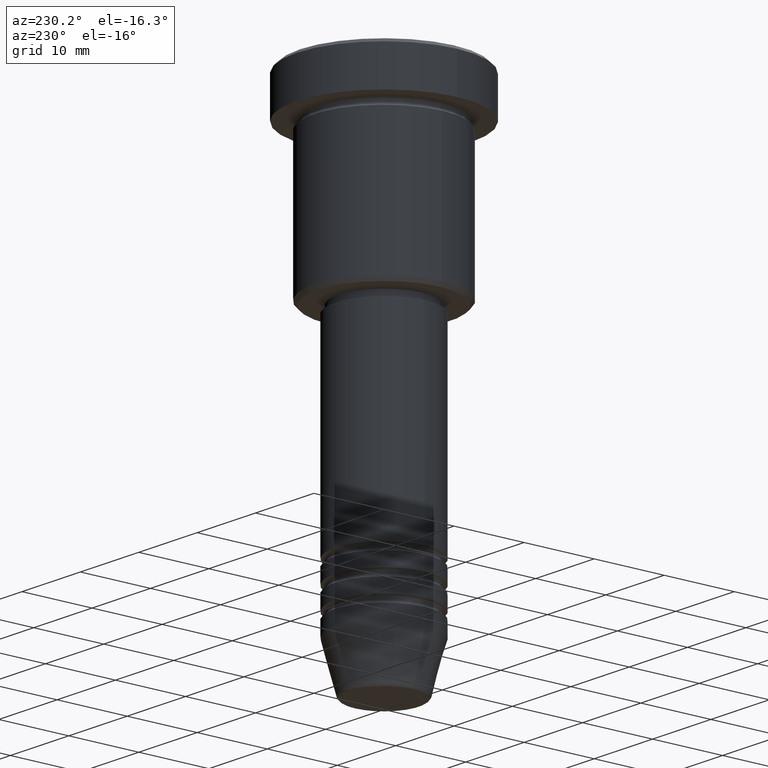
[diagram: clean part render]
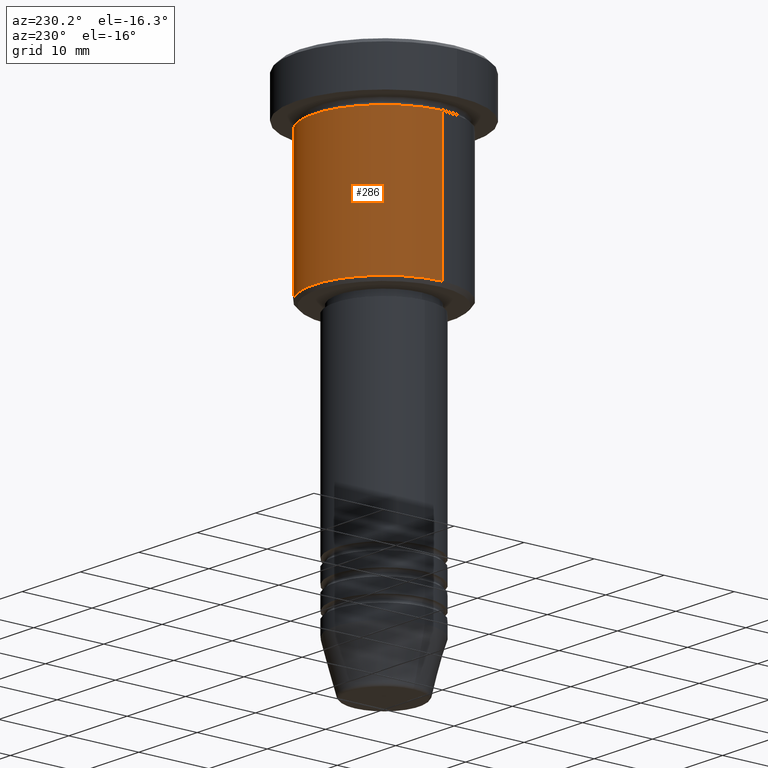
[diagram: same view with one face highlighted and labeled with its STEP entity id]
A machine part, auxiliary view. The second image highlights one B-rep face of the part: STEP entity #286.
In plain terms, the highlighted cylindrical surface (partial cylindrical patch) has radius 10 mm, axis along (-0, -0, 1).
Its self-contained STEP definition (entity closure, byte-faithful):
#9 = CARTESIAN_POINT ( 'NONE',  ( -10.00000000000000000, 1.224646799147353256E-15, -26.50000000000000355 ) ) ;
#11 = EDGE_LOOP ( 'NONE', ( #896, #1043, #842, #69 ) ) ;
#50 = CARTESIAN_POINT ( 'NONE',  ( -10.00000000000000000, 1.224646799147353256E-15, 0.000000000000000000 ) ) ;
#69 = ORIENTED_EDGE ( 'NONE', *, *, #1040, .F. ) ;
#70 = DIRECTION ( 'NONE',  ( -0.000000000000000000, -0.000000000000000000, 1.000000000000000000 ) ) ;
#94 = DIRECTION ( 'NONE',  ( -1.000000000000000000, 0.000000000000000000, 0.000000000000000000 ) ) ;
#99 = DIRECTION ( 'NONE',  ( -0.000000000000000000, -0.000000000000000000, 1.000000000000000000 ) ) ;
#137 = CIRCLE ( 'NONE', #811, 10.00000000000000000 ) ;
#149 = LINE ( 'NONE', #50, #871 ) ;
#177 = CARTESIAN_POINT ( 'NONE',  ( 0.000000000000000000, 0.000000000000000000, 0.000000000000000000 ) ) ;
#231 = VERTEX_POINT ( 'NONE', #836 ) ;
#235 = CARTESIAN_POINT ( 'NONE',  ( 10.00000000000000000, 0.000000000000000000, 0.000000000000000000 ) ) ;
#258 = AXIS2_PLACEMENT_3D ( 'NONE', #525, #444, #94 ) ;
#286 = ADVANCED_FACE ( 'NONE', ( #824 ), #367, .T. ) ;
#292 = VERTEX_POINT ( 'NONE', #9 ) ;
#312 = DIRECTION ( 'NONE',  ( -0.000000000000000000, -0.000000000000000000, 1.000000000000000000 ) ) ;
#367 = CYLINDRICAL_SURFACE ( 'NONE', #499, 10.00000000000000000 ) ;
#444 = DIRECTION ( 'NONE',  ( -0.000000000000000000, -0.000000000000000000, 1.000000000000000000 ) ) ;
#499 = AXIS2_PLACEMENT_3D ( 'NONE', #177, #1101, #548 ) ;
#525 = CARTESIAN_POINT ( 'NONE',  ( 0.000000000000000000, 0.000000000000000000, -26.50000000000000355 ) ) ;
#548 = DIRECTION ( 'NONE',  ( 1.000000000000000000, 0.000000000000000000, 0.000000000000000000 ) ) ;
#566 = VERTEX_POINT ( 'NONE', #601 ) ;
#601 = CARTESIAN_POINT ( 'NONE',  ( -10.00000000000000000, 1.224646799147353256E-15, -6.999999999999996447 ) ) ;
#754 = VECTOR ( 'NONE', #99, 1000.000000000000000 ) ;
#773 = CIRCLE ( 'NONE', #258, 10.00000000000000000 ) ;
#786 = CARTESIAN_POINT ( 'NONE',  ( 10.00000000000000000, 0.000000000000000000, -6.999999999999996447 ) ) ;
#793 = LINE ( 'NONE', #235, #754 ) ;
#811 = AXIS2_PLACEMENT_3D ( 'NONE', #1042, #312, #849 ) ;
#824 = FACE_OUTER_BOUND ( 'NONE', #11, .T. ) ;
#830 = EDGE_CURVE ( 'NONE', #1012, #566, #137, .T. ) ;
#836 = CARTESIAN_POINT ( 'NONE',  ( 10.00000000000000000, 0.000000000000000000, -26.50000000000000355 ) ) ;
#842 = ORIENTED_EDGE ( 'NONE', *, *, #830, .F. ) ;
#849 = DIRECTION ( 'NONE',  ( 1.000000000000000000, 0.000000000000000000, 0.000000000000000000 ) ) ;
#871 = VECTOR ( 'NONE', #70, 1000.000000000000000 ) ;
#896 = ORIENTED_EDGE ( 'NONE', *, *, #1095, .T. ) ;
#923 = EDGE_CURVE ( 'NONE', #292, #566, #149, .T. ) ;
#1012 = VERTEX_POINT ( 'NONE', #786 ) ;
#1040 = EDGE_CURVE ( 'NONE', #231, #1012, #793, .T. ) ;
#1042 = CARTESIAN_POINT ( 'NONE',  ( 0.000000000000000000, 0.000000000000000000, -6.999999999999996447 ) ) ;
#1043 = ORIENTED_EDGE ( 'NONE', *, *, #923, .T. ) ;
#1095 = EDGE_CURVE ( 'NONE', #231, #292, #773, .T. ) ;
#1101 = DIRECTION ( 'NONE',  ( -0.000000000000000000, -0.000000000000000000, 1.000000000000000000 ) ) ;